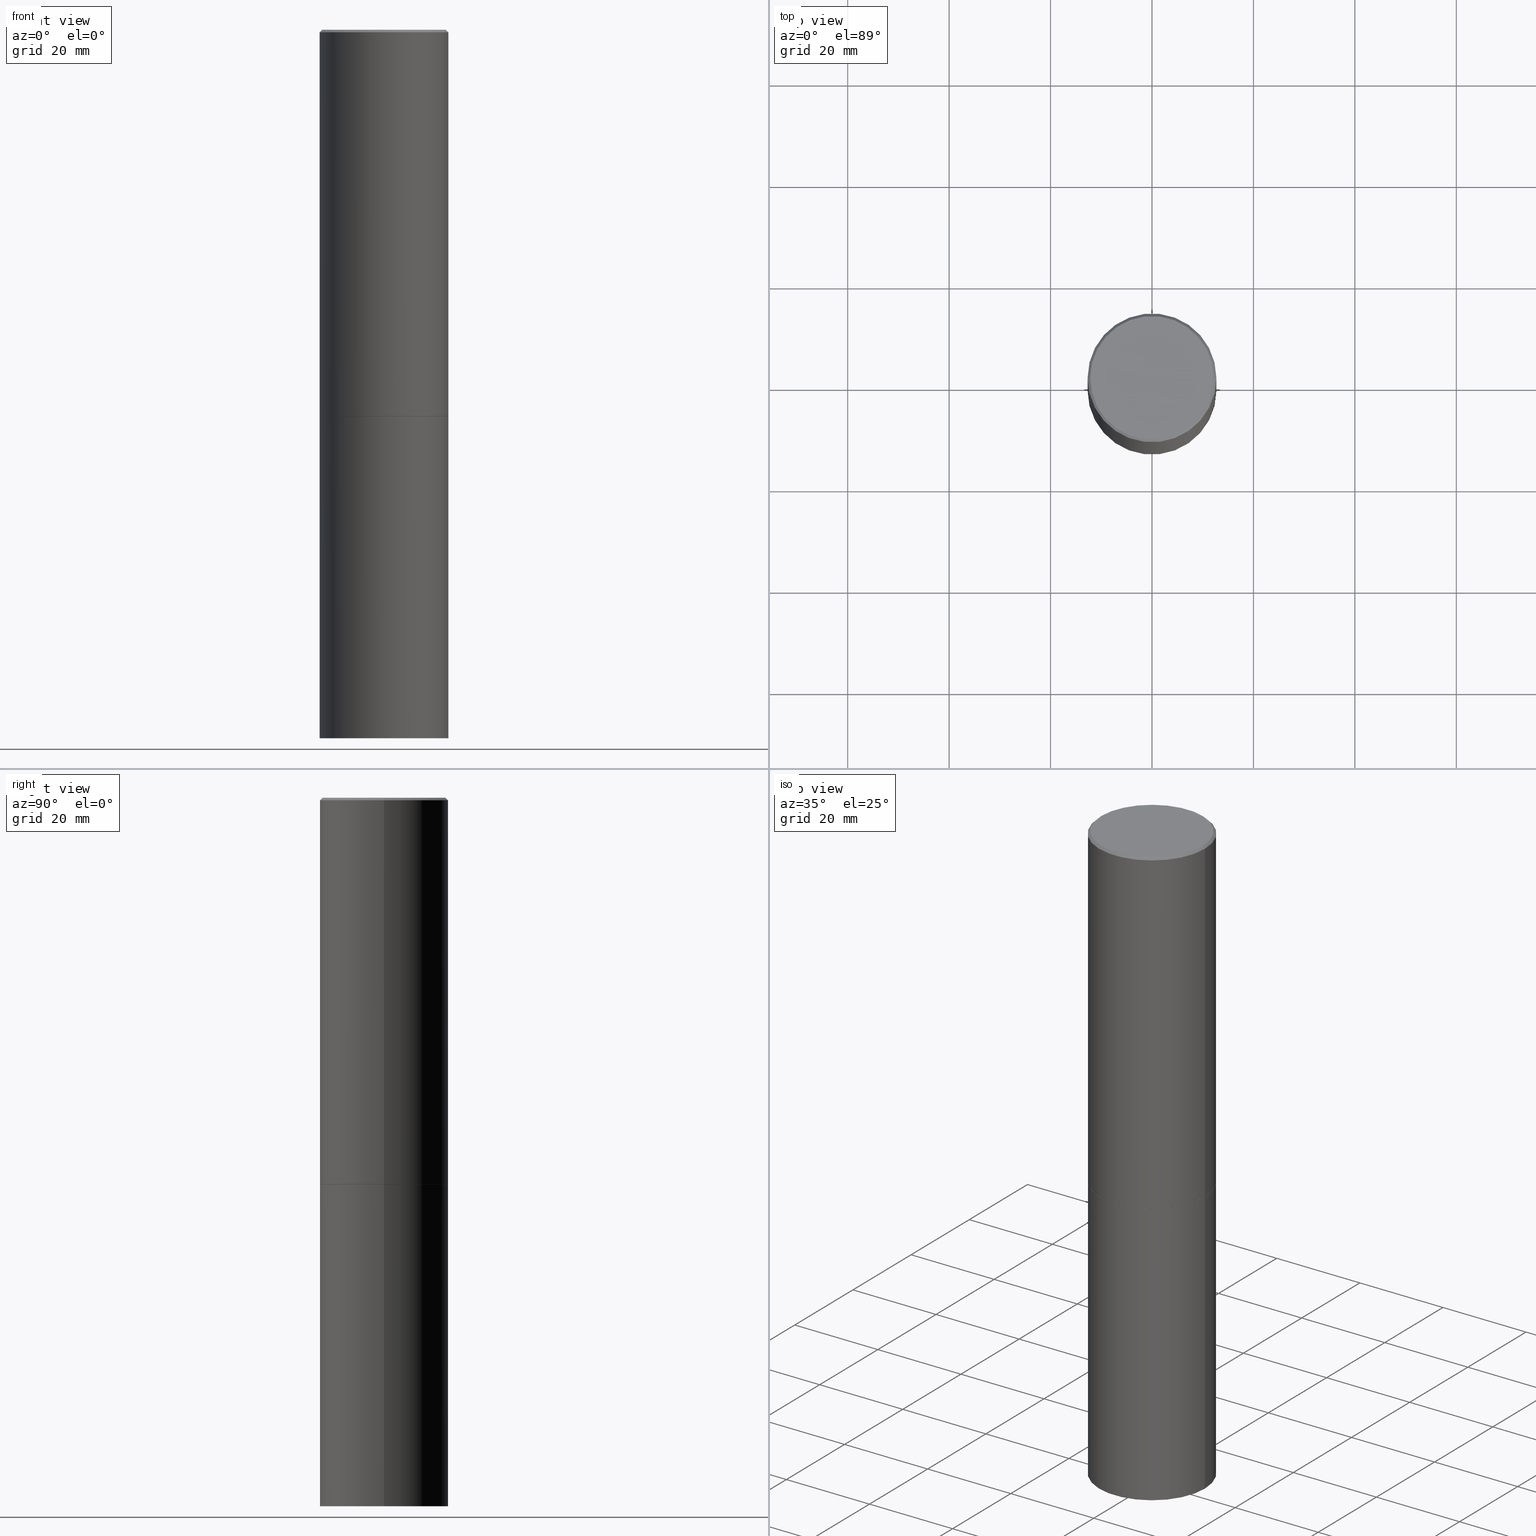
[diagram: canonical four-view strip — front | top / right | iso, engineering-drawing reading convention]
A machine part, canonical four-view strip (front | top / right | iso — engineering-drawing reading convention). The complete STEP part file that produces these views, byte-faithful:
ISO-10303-21;
HEADER;
FILE_DESCRIPTION (( 'STEP AP203' ),
    '1' );
FILE_NAME ('77462.STEP',
    '2024-05-03T15:07:13',
    ( '' ),
    ( '' ),
    'SwSTEP 2.0',
    'SolidWorks 2023',
    '' );
FILE_SCHEMA (( 'CONFIG_CONTROL_DESIGN' ));
ENDSEC;

DATA;
#1 = DIRECTION ( 'NONE',  ( 1.000000000000000000, -6.982962677686266711E-15, 0.000000000000000000 ) ) ;
#2 = DIRECTION ( 'NONE',  ( 0.000000000000000000, 0.000000000000000000, 1.000000000000000000 ) ) ;
#3 = LINE ( 'NONE', #17, #142 ) ;
#4 = ADVANCED_FACE ( 'NONE', ( #22 ), #277, .T. ) ;
#5 = CYLINDRICAL_SURFACE ( 'NONE', #235, 0.5000000000000000000 ) ;
#6 = VECTOR ( 'NONE', #311, 39.37007874015748143 ) ;
#7 = ORIENTED_EDGE ( 'NONE', *, *, #270, .F. ) ;
#8 = CC_DESIGN_PERSON_AND_ORGANIZATION_ASSIGNMENT ( #285, #350, ( #352 ) ) ;
#9 = APPROVAL ( #260, 'UNSPECIFIED' ) ;
#10 = VECTOR ( 'NONE', #57, 39.37007874015748143 ) ;
#11 = CONICAL_SURFACE ( 'NONE', #223, 0.4989999999999999991, 0.7853981633978239785 ) ;
#12 = VERTEX_POINT ( 'NONE', #364 ) ;
#13 = ORIENTED_EDGE ( 'NONE', *, *, #123, .F. ) ;
#14 = AXIS2_PLACEMENT_3D ( 'NONE', #141, #343, #67 ) ;
#15 = DIRECTION ( 'NONE',  ( -2.445468806185136597E-29, 3.491481338843145583E-15, 1.000000000000000000 ) ) ;
#16 = EDGE_LOOP ( 'NONE', ( #334, #316, #301, #71 ) ) ;
#17 = CARTESIAN_POINT ( 'NONE',  ( -0.4999999999999998335, 3.552713678800499746E-15, -2.459467545127452330E-29 ) ) ;
#18 = VERTEX_POINT ( 'NONE', #109 ) ;
#19 = PLANE ( 'NONE',  #81 ) ;
#20 = AXIS2_PLACEMENT_3D ( 'NONE', #47, #51, #165 ) ;
#21 = FACE_OUTER_BOUND ( 'NONE', #79, .T. ) ;
#22 = FACE_OUTER_BOUND ( 'NONE', #194, .T. ) ;
#23 = CC_DESIGN_DATE_AND_TIME_ASSIGNMENT ( #318, #41, ( #74 ) ) ;
#24 = FACE_OUTER_BOUND ( 'NONE', #353, .T. ) ;
#25 = VERTEX_POINT ( 'NONE', #78 ) ;
#26 =( NAMED_UNIT ( * ) PLANE_ANGLE_UNIT ( ) SI_UNIT ( $, .RADIAN. ) );
#27 = CARTESIAN_POINT ( 'NONE',  ( 7.336406418555408669E-29, -1.047444401652943478E-14, -2.999999999999999556 ) ) ;
#28 = EDGE_CURVE ( 'NONE', #213, #69, #215, .T. ) ;
#29 = FACE_OUTER_BOUND ( 'NONE', #156, .T. ) ;
#30 = PERSON_AND_ORGANIZATION ( #84, #271 ) ;
#31 = CC_DESIGN_APPROVAL ( #9, ( #74 ) ) ;
#32 = DATE_AND_TIME ( #315, #120 ) ;
#33 = DIRECTION ( 'NONE',  ( 1.000000000000000000, -6.982962677686269077E-15, 0.000000000000000000 ) ) ;
#34 = APPLICATION_PROTOCOL_DEFINITION ( 'international standard', 'config_control_design', 1994, #116 ) ;
#35 = ORIENTED_EDGE ( 'NONE', *, *, #225, .T. ) ;
#36 = PERSON_AND_ORGANIZATION_ROLE ( 'creator' ) ;
#37 = EDGE_CURVE ( 'NONE', #52, #25, #268, .T. ) ;
#38 = CIRCLE ( 'NONE', #234, 0.4989999999999999991 ) ;
#39 = AXIS2_PLACEMENT_3D ( 'NONE', #236, #273, #216 ) ;
#40 = COORDINATED_UNIVERSAL_TIME_OFFSET ( 5, 0, .BEHIND. ) ;
#41 = DATE_TIME_ROLE ( 'classification_date' ) ;
#42 = VERTEX_POINT ( 'NONE', #187 ) ;
#43 = CC_DESIGN_APPROVAL ( #351, ( #227 ) ) ;
#44 = DIRECTION ( 'NONE',  ( -2.438088387897960049E-29, 3.491481338843145188E-15, 1.000000000000000000 ) ) ;
#45 = EDGE_CURVE ( 'NONE', #272, #239, #206, .T. ) ;
#46 = EDGE_LOOP ( 'NONE', ( #338, #139, #298, #237 ) ) ;
#47 = CARTESIAN_POINT ( 'NONE',  ( 7.333960949749226429E-29, -1.047095253519059492E-14, -2.999000000000000554 ) ) ;
#48 = EDGE_CURVE ( 'NONE', #99, #264, #38, .T. ) ;
#49 = CLOSED_SHELL ( 'NONE', ( #252, #265, #4, #344, #276, #313, #100, #60 ) ) ;
#50 = CIRCLE ( 'NONE', #341, 0.5000000000000000000 ) ;
#51 = DIRECTION ( 'NONE',  ( -2.445468806185136597E-29, 3.491481338843145583E-15, 1.000000000000000000 ) ) ;
#52 = VERTEX_POINT ( 'NONE', #176 ) ;
#53 = CARTESIAN_POINT ( 'NONE',  ( 0.4999999999999998335, -3.491481338843132566E-15, 2.438088387897967336E-29 ) ) ;
#54 = DIRECTION ( 'NONE',  ( -2.445468806185136597E-29, 3.491481338843145583E-15, 1.000000000000000000 ) ) ;
#55 = AXIS2_PLACEMENT_3D ( 'NONE', #171, #15, #130 ) ;
#56 = CYLINDRICAL_SURFACE ( 'NONE', #55, 0.5000000000000000000 ) ;
#57 = DIRECTION ( 'NONE',  ( -2.445468806185136877E-29, 3.491481338843145188E-15, 1.000000000000000000 ) ) ;
#58 = ORIENTED_EDGE ( 'NONE', *, *, #225, .F. ) ;
#59 = DIRECTION ( 'NONE',  ( -2.445468806185136597E-29, 3.491481338843145583E-15, 1.000000000000000000 ) ) ;
#60 = ADVANCED_FACE ( 'NONE', ( #300 ), #305, .F. ) ;
#61 = LOCAL_TIME ( 11, 7, 13.00000000000000000, #149 ) ;
#62 =( NAMED_UNIT ( * ) SI_UNIT ( $, .STERADIAN. ) SOLID_ANGLE_UNIT ( ) );
#63 = CARTESIAN_POINT ( 'NONE',  ( 7.336406418555408669E-29, -1.047444401652943478E-14, -2.999999999999999556 ) ) ;
#64 = MANIFOLD_SOLID_BREP ( 'Body-Move/Copy2[2]', #49 ) ;
#65 = CARTESIAN_POINT ( 'NONE',  ( 0.000000000000000000, 0.000000000000000000, 0.000000000000000000 ) ) ;
#66 = ORIENTED_EDGE ( 'NONE', *, *, #37, .F. ) ;
#67 = DIRECTION ( 'NONE',  ( -1.000000000000000000, 6.982962677686266711E-15, 0.000000000000000000 ) ) ;
#68 = ORIENTED_EDGE ( 'NONE', *, *, #339, .T. ) ;
#69 = VERTEX_POINT ( 'NONE', #133 ) ;
#70 = ORIENTED_EDGE ( 'NONE', *, *, #354, .F. ) ;
#71 = ORIENTED_EDGE ( 'NONE', *, *, #119, .F. ) ;
#72 = ORIENTED_EDGE ( 'NONE', *, *, #290, .F. ) ;
#73 = AXIS2_PLACEMENT_3D ( 'NONE', #131, #258, #158 ) ;
#74 = SECURITY_CLASSIFICATION ( '', '', #94 ) ;
#75 = EDGE_CURVE ( 'NONE', #52, #12, #186, .T. ) ;
#76 = CARTESIAN_POINT ( 'NONE',  ( 0.4999999999999997224, -3.500078625662627502E-15, -0.02000000000000013572 ) ) ;
#77 = CARTESIAN_POINT ( 'NONE',  ( 0.000000000000000000, 0.000000000000000000, 0.000000000000000000 ) ) ;
#78 = CARTESIAN_POINT ( 'NONE',  ( 0.4799999999999995937, -3.396558832296480127E-15, 1.280553747032483033E-17 ) ) ;
#79 = EDGE_LOOP ( 'NONE', ( #295, #204, #72, #103 ) ) ;
#80 = AXIS2_PLACEMENT_3D ( 'NONE', #317, #2, #115 ) ;
#81 = AXIS2_PLACEMENT_3D ( 'NONE', #108, #195, #292 ) ;
#82 = CARTESIAN_POINT ( 'NONE',  ( 7.336406418555408669E-29, -1.047444401652943478E-14, -2.999999999999999556 ) ) ;
#83 = DIRECTION ( 'NONE',  ( 0.7071067811865471286, -7.319954787623254468E-15, -0.7071067811865479058 ) ) ;
#84 = PERSON ( 'UNSPECIFIED', 'UNSPECIFIED', 'UNSPECIFIED', ('UNSPECIFIED'), ('UNSPECIFIED'), ('UNSPECIFIED') ) ;
#85 = CARTESIAN_POINT ( 'NONE',  ( 4.890937612370306439E-31, -6.982962677686338448E-17, -0.02000000000000013572 ) ) ;
#86 = AXIS2_PLACEMENT_3D ( 'NONE', #253, #323, #128 ) ;
#87 = AXIS2_PLACEMENT_3D ( 'NONE', #192, #333, #166 ) ;
#88 = ORIENTED_EDGE ( 'NONE', *, *, #284, .T. ) ;
#89 = LOCAL_TIME ( 11, 7, 13.00000000000000000, #40 ) ;
#90 =( CONVERSION_BASED_UNIT ( 'INCH', #143 ) LENGTH_UNIT ( ) NAMED_UNIT ( #218 ) );
#91 = CC_DESIGN_DATE_AND_TIME_ASSIGNMENT ( #122, #340, ( #227 ) ) ;
#92 = DIRECTION ( 'NONE',  ( -2.445468806185136597E-29, 3.491481338843145583E-15, 1.000000000000000000 ) ) ;
#93 = ORIENTED_EDGE ( 'NONE', *, *, #339, .F. ) ;
#94 = SECURITY_CLASSIFICATION_LEVEL ( 'unclassified' ) ;
#95 = EDGE_LOOP ( 'NONE', ( #58, #66, #101, #291 ) ) ;
#96 = DATE_AND_TIME ( #151, #191 ) ;
#97 = LOCAL_TIME ( 11, 7, 13.00000000000000000, #288 ) ;
#98 = PERSON_AND_ORGANIZATION ( #84, #271 ) ;
#99 = VERTEX_POINT ( 'NONE', #150 ) ;
#100 = ADVANCED_FACE ( 'NONE', ( #29 ), #250, .F. ) ;
#101 = ORIENTED_EDGE ( 'NONE', *, *, #75, .T. ) ;
#102 = CALENDAR_DATE ( 2024, 3, 5 ) ;
#103 = ORIENTED_EDGE ( 'NONE', *, *, #28, .F. ) ;
#104 = CIRCLE ( 'NONE', #87, 0.4799999999999995937 ) ;
#105 = DIRECTION ( 'NONE',  ( -2.445468806185136597E-29, 3.491481338843145583E-15, 1.000000000000000000 ) ) ;
#106 = CARTESIAN_POINT ( 'NONE',  ( -0.5000000000000000000, -1.128608201128286632E-14, -5.500000000000000000 ) ) ;
#107 = DIRECTION ( 'NONE',  ( -2.445468806185136877E-29, 3.491481338843145188E-15, 1.000000000000000000 ) ) ;
#108 = CARTESIAN_POINT ( 'NONE',  ( 3.491481338843267462E-15, 0.4999999999999807931, -5.500000000000001776 ) ) ;
#109 = CARTESIAN_POINT ( 'NONE',  ( 0.4999999999999997224, -3.500078625662627502E-15, -0.02000000000000013572 ) ) ;
#110 = ORIENTED_EDGE ( 'NONE', *, *, #358, .F. ) ;
#111 = CYLINDRICAL_SURFACE ( 'NONE', #197, 0.4999999999999998335 ) ;
#112 = ORIENTED_EDGE ( 'NONE', *, *, #172, .F. ) ;
#113 = DIRECTION ( 'NONE',  ( 1.000000000000000000, -6.982962677686269077E-15, 0.000000000000000000 ) ) ;
#114 = AXIS2_PLACEMENT_3D ( 'NONE', #238, #54, #138 ) ;
#115 = DIRECTION ( 'NONE',  ( 1.000000000000000000, 0.000000000000000000, 0.000000000000000000 ) ) ;
#116 = APPLICATION_CONTEXT ( 'configuration controlled 3d designs of mechanical parts and assemblies' ) ;
#117 = DIRECTION ( 'NONE',  ( 1.000000000000000000, -6.982962677686266711E-15, 4.876176775795935793E-29 ) ) ;
#118 =( LENGTH_UNIT ( ) NAMED_UNIT ( * ) SI_UNIT ( $, .METRE. ) );
#119 = EDGE_CURVE ( 'NONE', #239, #69, #282, .T. ) ;
#120 = LOCAL_TIME ( 11, 7, 13.00000000000000000, #348 ) ;
#121 = DIRECTION ( 'NONE',  ( 0.7071067811868130271, -2.468850131085038979E-15, 0.7071067811862817853 ) ) ;
#122 = DATE_AND_TIME ( #254, #61 ) ;
#123 = EDGE_CURVE ( 'NONE', #25, #52, #104, .T. ) ;
#124 = ORIENTED_EDGE ( 'NONE', *, *, #296, .T. ) ;
#125 = CONICAL_SURFACE ( 'NONE', #304, 0.4989999999999999991, 0.7853981633978239785 ) ;
#126 = CALENDAR_DATE ( 2024, 3, 5 ) ;
#127 = ORIENTED_EDGE ( 'NONE', *, *, #290, .T. ) ;
#128 = DIRECTION ( 'NONE',  ( -1.000000000000000000, 6.982962677686265922E-15, -4.876176775795935793E-29 ) ) ;
#129 = AXIS2_PLACEMENT_3D ( 'NONE', #345, #180, #280 ) ;
#130 = DIRECTION ( 'NONE',  ( 1.000000000000000000, -6.982962677686266711E-15, 4.876176775795935793E-29 ) ) ;
#131 = CARTESIAN_POINT ( 'NONE',  ( -3.131554243005659264E-46, 4.471029511141341874E-32, 1.280553747030123384E-17 ) ) ;
#132 = DIRECTION ( 'NONE',  ( -2.445468806185136597E-29, 3.491481338843145583E-15, 1.000000000000000000 ) ) ;
#133 = CARTESIAN_POINT ( 'NONE',  ( 0.5000000000000000000, -1.396592535537256813E-14, -2.999999999999999556 ) ) ;
#134 = LINE ( 'NONE', #53, #175 ) ;
#135 = CARTESIAN_POINT ( 'NONE',  ( 4.890937612370306439E-31, -6.982962677686338448E-17, -0.02000000000000013572 ) ) ;
#136 = CLOSED_SHELL ( 'NONE', ( #337, #275, #202, #349 ) ) ;
#137 = AXIS2_PLACEMENT_3D ( 'NONE', #27, #342, #247 ) ;
#138 = DIRECTION ( 'NONE',  ( 1.000000000000000000, -6.982962677686262766E-15, 0.000000000000000000 ) ) ;
#139 = ORIENTED_EDGE ( 'NONE', *, *, #172, .T. ) ;
#140 = FACE_OUTER_BOUND ( 'NONE', #190, .T. ) ;
#141 = CARTESIAN_POINT ( 'NONE',  ( 4.890937612370306439E-31, -6.982962677686338448E-17, -0.02000000000000013572 ) ) ;
#142 = VECTOR ( 'NONE', #163, 39.37007874015748143 ) ;
#143 = LENGTH_MEASURE_WITH_UNIT ( LENGTH_MEASURE( 0.02539999999999999897 ), #118 );
#144 = DIRECTION ( 'NONE',  ( -2.445468806185136597E-29, 3.491481338843145583E-15, 1.000000000000000000 ) ) ;
#145 = APPROVAL_DATE_TIME ( #32, #351 ) ;
#146 = CARTESIAN_POINT ( 'NONE',  ( 7.333960949749226429E-29, -1.047095253519059492E-14, -2.999000000000000554 ) ) ;
#147 = DIRECTION ( 'NONE',  ( -0.7071067811865471286, 2.468850131082252722E-15, -0.7071067811865479058 ) ) ;
#148 = AXIS2_PLACEMENT_3D ( 'NONE', #85, #196, #269 ) ;
#149 = COORDINATED_UNIVERSAL_TIME_OFFSET ( 5, 0, .BEHIND. ) ;
#150 = CARTESIAN_POINT ( 'NONE',  ( -0.4989999999999999991, -6.923537310738314819E-15, -2.999999999999999556 ) ) ;
#151 = CALENDAR_DATE ( 2024, 3, 5 ) ;
#152 = ORIENTED_EDGE ( 'NONE', *, *, #48, .T. ) ;
#153 = APPROVAL_DATE_TIME ( #96, #9 ) ;
#154 = ORIENTED_EDGE ( 'NONE', *, *, #123, .T. ) ;
#155 = AXIS2_PLACEMENT_3D ( 'NONE', #208, #132, #1 ) ;
#156 = EDGE_LOOP ( 'NONE', ( #322, #181 ) ) ;
#157 = EDGE_CURVE ( 'NONE', #264, #99, #346, .T. ) ;
#158 = DIRECTION ( 'NONE',  ( 1.000000000000000000, -6.982962677686266711E-15, 4.876036955247133327E-29 ) ) ;
#159 = EDGE_LOOP ( 'NONE', ( #321, #306, #110, #93 ) ) ;
#160 = PERSON_AND_ORGANIZATION_ROLE ( 'classification_officer' ) ;
#161 = ORIENTED_EDGE ( 'NONE', *, *, #37, .T. ) ;
#162 = PRODUCT_DEFINITION_SHAPE ( 'NONE', 'NONE',  #227 ) ;
#163 = DIRECTION ( 'NONE',  ( -2.445468806185136877E-29, 3.491481338843145188E-15, 1.000000000000000000 ) ) ;
#164 = CIRCLE ( 'NONE', #129, 0.5000000000000000000 ) ;
#165 = DIRECTION ( 'NONE',  ( 1.000000000000000000, -6.982962677686266711E-15, 0.000000000000000000 ) ) ;
#166 = DIRECTION ( 'NONE',  ( 1.000000000000000000, -6.982962677686266711E-15, 4.876036955247133327E-29 ) ) ;
#167 = DIRECTION ( 'NONE',  ( -2.445468806185136597E-29, 3.491481338843145583E-15, 1.000000000000000000 ) ) ;
#168 = CARTESIAN_POINT ( 'NONE',  ( -0.5000000000000000000, -1.128608201128286632E-14, -2.999999999999999556 ) ) ;
#169 = APPROVAL_PERSON_ORGANIZATION ( #182, #9, #355 ) ;
#170 = CC_DESIGN_SECURITY_CLASSIFICATION ( #74, ( #352 ) ) ;
#171 = CARTESIAN_POINT ( 'NONE',  ( 0.000000000000000000, 0.000000000000000000, 0.000000000000000000 ) ) ;
#172 = EDGE_CURVE ( 'NONE', #42, #12, #3, .T. ) ;
#173 = APPROVAL_STATUS ( 'not_yet_approved' ) ;
#174 = PERSON_AND_ORGANIZATION ( #84, #271 ) ;
#175 = VECTOR ( 'NONE', #107, 39.37007874015748143 ) ;
#176 = CARTESIAN_POINT ( 'NONE',  ( -0.4799999999999995937, 3.386736898677836436E-15, 1.280553747027767124E-17 ) ) ;
#177 = CARTESIAN_POINT ( 'NONE',  ( 7.336406418555408669E-29, -1.047444401652943478E-14, -2.999999999999999556 ) ) ;
#178 = CC_DESIGN_PERSON_AND_ORGANIZATION_ASSIGNMENT ( #320, #160, ( #74 ) ) ;
#179 = MANIFOLD_SOLID_BREP ( 'Body-Move/Copy2[1]', #136 ) ;
#180 = DIRECTION ( 'NONE',  ( -2.445468806185136597E-29, 3.491481338843145583E-15, 1.000000000000000000 ) ) ;
#181 = ORIENTED_EDGE ( 'NONE', *, *, #48, .F. ) ;
#182 = PERSON_AND_ORGANIZATION ( #84, #271 ) ;
#183 = CARTESIAN_POINT ( 'NONE',  ( 7.336406418555408669E-29, -1.047444401652943478E-14, -2.999999999999999556 ) ) ;
#184 = AXIS2_PLACEMENT_3D ( 'NONE', #177, #44, #233 ) ;
#185 = VECTOR ( 'NONE', #83, 39.37007874015748143 ) ;
#186 = LINE ( 'NONE', #278, #210 ) ;
#187 = CARTESIAN_POINT ( 'NONE',  ( -0.5000000000000000000, -1.717677402183226998E-15, -2.999000000000000554 ) ) ;
#188 = LINE ( 'NONE', #76, #185 ) ;
#189 = DIRECTION ( 'NONE',  ( -2.445468806185136597E-29, 3.491481338843145583E-15, 1.000000000000000000 ) ) ;
#190 = EDGE_LOOP ( 'NONE', ( #112, #124, #88, #360 ) ) ;
#191 = LOCAL_TIME ( 11, 7, 13.00000000000000000, #232 ) ;
#192 = CARTESIAN_POINT ( 'NONE',  ( -3.131554243005659264E-46, 4.471029511141341874E-32, 1.280553747030123384E-17 ) ) ;
#193 = LINE ( 'NONE', #263, #357 ) ;
#194 = EDGE_LOOP ( 'NONE', ( #13, #35, #244, #201 ) ) ;
#195 = DIRECTION ( 'NONE',  ( 2.438088387897960049E-29, -3.491481338843145188E-15, -1.000000000000000000 ) ) ;
#196 = DIRECTION ( 'NONE',  ( -2.445468806185136597E-29, 3.491481338843145583E-15, 1.000000000000000000 ) ) ;
#197 = AXIS2_PLACEMENT_3D ( 'NONE', #77, #189, #294 ) ;
#198 = APPROVAL_ROLE ( '' ) ;
#199 = APPLICATION_PROTOCOL_DEFINITION ( 'international standard', 'config_control_design', 1994, #229 ) ;
#200 = FACE_OUTER_BOUND ( 'NONE', #16, .T. ) ;
#201 = ORIENTED_EDGE ( 'NONE', *, *, #75, .F. ) ;
#202 = ADVANCED_FACE ( 'NONE', ( #363 ), #327, .F. ) ;
#203 = CIRCLE ( 'NONE', #148, 0.4999999999999997224 ) ;
#204 = ORIENTED_EDGE ( 'NONE', *, *, #45, .T. ) ;
#205 = APPROVAL_DATE_TIME ( #230, #287 ) ;
#206 = LINE ( 'NONE', #259, #6 ) ;
#207 = CIRCLE ( 'NONE', #155, 0.4999999999999997224 ) ;
#208 = CARTESIAN_POINT ( 'NONE',  ( 4.890937612370306439E-31, -6.982962677686338448E-17, -0.02000000000000013572 ) ) ;
#209 = DIRECTION ( 'NONE',  ( 1.000000000000000000, -6.982962677686266711E-15, 0.000000000000000000 ) ) ;
#210 = VECTOR ( 'NONE', #147, 39.37007874015748143 ) ;
#211 = CYLINDRICAL_SURFACE ( 'NONE', #330, 0.4999999999999998335 ) ;
#212 = APPROVAL_PERSON_ORGANIZATION ( #174, #351, #198 ) ;
#213 = VERTEX_POINT ( 'NONE', #266 ) ;
#214 = FACE_OUTER_BOUND ( 'NONE', #336, .T. ) ;
#215 = LINE ( 'NONE', #303, #10 ) ;
#216 = DIRECTION ( 'NONE',  ( -1.000000000000000000, 6.982962677686265922E-15, -4.876176775795935793E-29 ) ) ;
#217 = DIRECTION ( 'NONE',  ( -2.445468806185136597E-29, 3.491481338843145583E-15, 1.000000000000000000 ) ) ;
#218 = DIMENSIONAL_EXPONENTS ( 1.000000000000000000, 0.000000000000000000, 0.000000000000000000, 0.000000000000000000, 0.000000000000000000, 0.000000000000000000, 0.000000000000000000 ) ;
#219 = DESIGN_CONTEXT ( 'detailed design', #116, 'design' ) ;
#220 = FACE_OUTER_BOUND ( 'NONE', #95, .T. ) ;
#221 = DIRECTION ( 'NONE',  ( 1.000000000000000000, -6.982962677686266711E-15, 0.000000000000000000 ) ) ;
#222 = CARTESIAN_POINT ( 'NONE',  ( 0.4989999999999999991, -1.395894239269488369E-14, -2.999999999999999556 ) ) ;
#223 = AXIS2_PLACEMENT_3D ( 'NONE', #246, #299, #113 ) ;
#224 = MECHANICAL_CONTEXT ( 'NONE', #229, 'mechanical' ) ;
#225 = EDGE_CURVE ( 'NONE', #25, #18, #188, .T. ) ;
#226 = ORIENTED_EDGE ( 'NONE', *, *, #119, .T. ) ;
#227 = PRODUCT_DEFINITION ( 'UNKNOWN', '', #352, #219 ) ;
#228 = PERSON_AND_ORGANIZATION_ROLE ( 'creator' ) ;
#229 = APPLICATION_CONTEXT ( 'configuration controlled 3d designs of mechanical parts and assemblies' ) ;
#230 = DATE_AND_TIME ( #126, #89 ) ;
#231 = ORIENTED_EDGE ( 'NONE', *, *, #256, .F. ) ;
#232 = COORDINATED_UNIVERSAL_TIME_OFFSET ( 5, 0, .BEHIND. ) ;
#233 = DIRECTION ( 'NONE',  ( 1.000000000000000000, -6.982962677686265922E-15, 4.876176775795935793E-29 ) ) ;
#234 = AXIS2_PLACEMENT_3D ( 'NONE', #63, #144, #33 ) ;
#235 = AXIS2_PLACEMENT_3D ( 'NONE', #65, #59, #117 ) ;
#236 = CARTESIAN_POINT ( 'NONE',  ( 3.491481338843206325E-15, 0.4999999999999895639, -3.000000000000001332 ) ) ;
#237 = ORIENTED_EDGE ( 'NONE', *, *, #284, .F. ) ;
#238 = CARTESIAN_POINT ( 'NONE',  ( 1.345007843401824904E-28, -1.920314736363729972E-14, -5.500000000000000000 ) ) ;
#239 = VERTEX_POINT ( 'NONE', #168 ) ;
#240 = EDGE_CURVE ( 'NONE', #18, #12, #207, .T. ) ;
#241 = DIRECTION ( 'NONE',  ( 1.000000000000000000, -6.982962677686269077E-15, 0.000000000000000000 ) ) ;
#242 = DIRECTION ( 'NONE',  ( 2.445468806185136597E-29, -3.491481338843145583E-15, -1.000000000000000000 ) ) ;
#243 = APPROVAL_PERSON_ORGANIZATION ( #308, #287, #310 ) ;
#244 = ORIENTED_EDGE ( 'NONE', *, *, #240, .T. ) ;
#245 = FACE_OUTER_BOUND ( 'NONE', #46, .T. ) ;
#246 = CARTESIAN_POINT ( 'NONE',  ( 7.336406418555408669E-29, -1.047444401652943478E-14, -2.999999999999999556 ) ) ;
#247 = DIRECTION ( 'NONE',  ( 1.000000000000000000, -6.982962677686269077E-15, 0.000000000000000000 ) ) ;
#248 = CIRCLE ( 'NONE', #20, 0.5000000000000000000 ) ;
#249 = CC_DESIGN_PERSON_AND_ORGANIZATION_ASSIGNMENT ( #30, #279, ( #356 ) ) ;
#250 = PLANE ( 'NONE',  #184 ) ;
#251 = LINE ( 'NONE', #222, #319 ) ;
#252 = ADVANCED_FACE ( 'NONE', ( #359 ), #125, .T. ) ;
#253 = CARTESIAN_POINT ( 'NONE',  ( 3.351822085289404787E-15, 0.4799999999999995937, -1.669508273909557867E-15 ) ) ;
#254 = CALENDAR_DATE ( 2024, 3, 5 ) ;
#255 = SHAPE_DEFINITION_REPRESENTATION ( #162, #325 ) ;
#256 = EDGE_CURVE ( 'NONE', #272, #213, #261, .T. ) ;
#257 =( GEOMETRIC_REPRESENTATION_CONTEXT ( 3 ) GLOBAL_UNCERTAINTY_ASSIGNED_CONTEXT ( ( #314 ) ) GLOBAL_UNIT_ASSIGNED_CONTEXT ( ( #90, #26, #62 ) ) REPRESENTATION_CONTEXT ( 'NONE', 'WORKASPACE' ) );
#258 = DIRECTION ( 'NONE',  ( -2.445468806185136597E-29, 3.491481338843145583E-15, 1.000000000000000000 ) ) ;
#259 = CARTESIAN_POINT ( 'NONE',  ( -0.5000000000000000000, 3.552713678800500929E-15, -2.459467545127452891E-29 ) ) ;
#260 = APPROVAL_STATUS ( 'not_yet_approved' ) ;
#261 = CIRCLE ( 'NONE', #114, 0.5000000000000000000 ) ;
#262 = DIRECTION ( 'NONE',  ( 1.000000000000000000, -6.982962677686267499E-15, 4.876176775795936353E-29 ) ) ;
#263 = CARTESIAN_POINT ( 'NONE',  ( -0.4989999999999999991, -6.928835765086534855E-15, -2.999999999999999556 ) ) ;
#264 = VERTEX_POINT ( 'NONE', #297 ) ;
#265 = ADVANCED_FACE ( 'NONE', ( #245 ), #211, .T. ) ;
#266 = CARTESIAN_POINT ( 'NONE',  ( 0.5000000000000000000, -2.269462870248043307E-14, -5.500000000000000000 ) ) ;
#267 = EDGE_LOOP ( 'NONE', ( #127, #226 ) ) ;
#268 = CIRCLE ( 'NONE', #73, 0.4799999999999995937 ) ;
#269 = DIRECTION ( 'NONE',  ( 1.000000000000000000, -6.982962677686266711E-15, 0.000000000000000000 ) ) ;
#270 = EDGE_CURVE ( 'NONE', #99, #42, #193, .T. ) ;
#271 = ORGANIZATION ( 'UNSPECIFIED', 'UNSPECIFIED', '' ) ;
#272 = VERTEX_POINT ( 'NONE', #106 ) ;
#273 = DIRECTION ( 'NONE',  ( 2.438088387897960049E-29, -3.491481338843145188E-15, -1.000000000000000000 ) ) ;
#274 = APPROVAL_STATUS ( 'not_yet_approved' ) ;
#275 = ADVANCED_FACE ( 'NONE', ( #24 ), #19, .T. ) ;
#276 = ADVANCED_FACE ( 'NONE', ( #140 ), #111, .T. ) ;
#277 = CONICAL_SURFACE ( 'NONE', #329, 0.4999999999999997224, 0.7853981633974477239 ) ;
#278 = CARTESIAN_POINT ( 'NONE',  ( -0.4999999999999997224, 3.421651712066268085E-15, -0.02000000000000013572 ) ) ;
#279 = PERSON_AND_ORGANIZATION_ROLE ( 'design_owner' ) ;
#280 = DIRECTION ( 'NONE',  ( 1.000000000000000000, -6.982962677686262766E-15, 0.000000000000000000 ) ) ;
#281 = PERSON_AND_ORGANIZATION ( #84, #271 ) ;
#282 = CIRCLE ( 'NONE', #293, 0.5000000000000000000 ) ;
#283 = CIRCLE ( 'NONE', #362, 0.5000000000000000000 ) ;
#284 = EDGE_CURVE ( 'NONE', #289, #18, #134, .T. ) ;
#285 = PERSON_AND_ORGANIZATION ( #84, #271 ) ;
#286 = EDGE_LOOP ( 'NONE', ( #161, #154 ) ) ;
#287 = APPROVAL ( #274, 'UNSPECIFIED' ) ;
#288 = COORDINATED_UNIVERSAL_TIME_OFFSET ( 5, 0, .BEHIND. ) ;
#289 = VERTEX_POINT ( 'NONE', #366 ) ;
#290 = EDGE_CURVE ( 'NONE', #69, #239, #283, .T. ) ;
#291 = ORIENTED_EDGE ( 'NONE', *, *, #326, .T. ) ;
#292 = DIRECTION ( 'NONE',  ( -1.000000000000000000, 6.982962677686265922E-15, -4.876176775795935793E-29 ) ) ;
#293 = AXIS2_PLACEMENT_3D ( 'NONE', #183, #105, #209 ) ;
#294 = DIRECTION ( 'NONE',  ( 1.000000000000000000, -6.982962677686267499E-15, 4.876176775795936353E-29 ) ) ;
#295 = ORIENTED_EDGE ( 'NONE', *, *, #354, .T. ) ;
#296 = EDGE_CURVE ( 'NONE', #42, #289, #248, .T. ) ;
#297 = CARTESIAN_POINT ( 'NONE',  ( 0.4989999999999999991, -1.395894239269488369E-14, -2.999999999999999556 ) ) ;
#298 = ORIENTED_EDGE ( 'NONE', *, *, #240, .F. ) ;
#299 = DIRECTION ( 'NONE',  ( -2.445468806185136597E-29, 3.491481338843145583E-15, 1.000000000000000000 ) ) ;
#300 = FACE_OUTER_BOUND ( 'NONE', #286, .T. ) ;
#301 = ORIENTED_EDGE ( 'NONE', *, *, #28, .T. ) ;
#302 = CARTESIAN_POINT ( 'NONE',  ( 7.336406418555408669E-29, -1.047444401652943478E-14, -2.999999999999999556 ) ) ;
#303 = CARTESIAN_POINT ( 'NONE',  ( 0.5000000000000000000, -3.491481338843133355E-15, 2.438088387897967896E-29 ) ) ;
#304 = AXIS2_PLACEMENT_3D ( 'NONE', #82, #331, #241 ) ;
#305 = PLANE ( 'NONE',  #86 ) ;
#306 = ORIENTED_EDGE ( 'NONE', *, *, #270, .T. ) ;
#307 = PRODUCT_RELATED_PRODUCT_CATEGORY ( 'detail', '', ( #356 ) ) ;
#308 = PERSON_AND_ORGANIZATION ( #84, #271 ) ;
#309 = CC_DESIGN_PERSON_AND_ORGANIZATION_ASSIGNMENT ( #98, #228, ( #352 ) ) ;
#310 = APPROVAL_ROLE ( '' ) ;
#311 = DIRECTION ( 'NONE',  ( -2.445468806185136877E-29, 3.491481338843145188E-15, 1.000000000000000000 ) ) ;
#312 = CONICAL_SURFACE ( 'NONE', #14, 0.4999999999999997224, 0.7853981633974477239 ) ;
#313 = ADVANCED_FACE ( 'NONE', ( #214 ), #11, .T. ) ;
#314 = UNCERTAINTY_MEASURE_WITH_UNIT (LENGTH_MEASURE( 1.000000000000000082E-05 ), #90, 'distance_accuracy_value', 'NONE');
#315 = CALENDAR_DATE ( 2024, 3, 5 ) ;
#316 = ORIENTED_EDGE ( 'NONE', *, *, #256, .T. ) ;
#317 = CARTESIAN_POINT ( 'NONE',  ( 0.000000000000000000, 0.000000000000000000, 0.000000000000000000 ) ) ;
#318 = DATE_AND_TIME ( #102, #97 ) ;
#319 = VECTOR ( 'NONE', #121, 39.37007874015748854 ) ;
#320 = PERSON_AND_ORGANIZATION ( #84, #271 ) ;
#321 = ORIENTED_EDGE ( 'NONE', *, *, #157, .T. ) ;
#322 = ORIENTED_EDGE ( 'NONE', *, *, #157, .F. ) ;
#323 = DIRECTION ( 'NONE',  ( 2.438088387897960049E-29, -3.491481338843145188E-15, -1.000000000000000000 ) ) ;
#324 = CC_DESIGN_APPROVAL ( #287, ( #352 ) ) ;
#325 = ADVANCED_BREP_SHAPE_REPRESENTATION ( '77462', ( #179, #64, #80 ), #257 ) ;
#326 = EDGE_CURVE ( 'NONE', #12, #18, #203, .T. ) ;
#327 = PLANE ( 'NONE',  #39 ) ;
#328 = DIRECTION ( 'NONE',  ( -1.000000000000000000, 6.982962677686266711E-15, 0.000000000000000000 ) ) ;
#329 = AXIS2_PLACEMENT_3D ( 'NONE', #135, #242, #328 ) ;
#330 = AXIS2_PLACEMENT_3D ( 'NONE', #361, #217, #262 ) ;
#331 = DIRECTION ( 'NONE',  ( -2.445468806185136597E-29, 3.491481338843145583E-15, 1.000000000000000000 ) ) ;
#332 = DIRECTION ( 'NONE',  ( -0.7071067811868130271, 7.493145998871311837E-15, 0.7071067811862817853 ) ) ;
#333 = DIRECTION ( 'NONE',  ( -2.445468806185136597E-29, 3.491481338843145583E-15, 1.000000000000000000 ) ) ;
#334 = ORIENTED_EDGE ( 'NONE', *, *, #45, .F. ) ;
#335 = DIRECTION ( 'NONE',  ( 1.000000000000000000, -6.982962677686266711E-15, 0.000000000000000000 ) ) ;
#336 = EDGE_LOOP ( 'NONE', ( #7, #152, #68, #365 ) ) ;
#337 = ADVANCED_FACE ( 'NONE', ( #21 ), #56, .T. ) ;
#338 = ORIENTED_EDGE ( 'NONE', *, *, #358, .T. ) ;
#339 = EDGE_CURVE ( 'NONE', #264, #289, #251, .T. ) ;
#340 = DATE_TIME_ROLE ( 'creation_date' ) ;
#341 = AXIS2_PLACEMENT_3D ( 'NONE', #146, #92, #221 ) ;
#342 = DIRECTION ( 'NONE',  ( -2.445468806185136597E-29, 3.491481338843145583E-15, 1.000000000000000000 ) ) ;
#343 = DIRECTION ( 'NONE',  ( 2.445468806185136597E-29, -3.491481338843145583E-15, -1.000000000000000000 ) ) ;
#344 = ADVANCED_FACE ( 'NONE', ( #220 ), #312, .T. ) ;
#345 = CARTESIAN_POINT ( 'NONE',  ( 1.345007843401824904E-28, -1.920314736363729972E-14, -5.500000000000000000 ) ) ;
#346 = CIRCLE ( 'NONE', #137, 0.4989999999999999991 ) ;
#347 = CC_DESIGN_PERSON_AND_ORGANIZATION_ASSIGNMENT ( #281, #36, ( #227 ) ) ;
#348 = COORDINATED_UNIVERSAL_TIME_OFFSET ( 5, 0, .BEHIND. ) ;
#349 = ADVANCED_FACE ( 'NONE', ( #200 ), #5, .T. ) ;
#350 = PERSON_AND_ORGANIZATION_ROLE ( 'design_supplier' ) ;
#351 = APPROVAL ( #173, 'UNSPECIFIED' ) ;
#352 = PRODUCT_DEFINITION_FORMATION_WITH_SPECIFIED_SOURCE ( 'ANY', '', #356, .NOT_KNOWN. ) ;
#353 = EDGE_LOOP ( 'NONE', ( #70, #231 ) ) ;
#354 = EDGE_CURVE ( 'NONE', #213, #272, #164, .T. ) ;
#355 = APPROVAL_ROLE ( '' ) ;
#356 = PRODUCT ( '77462', '77462', '', ( #224 ) ) ;
#357 = VECTOR ( 'NONE', #332, 39.37007874015748854 ) ;
#358 = EDGE_CURVE ( 'NONE', #289, #42, #50, .T. ) ;
#359 = FACE_OUTER_BOUND ( 'NONE', #159, .T. ) ;
#360 = ORIENTED_EDGE ( 'NONE', *, *, #326, .F. ) ;
#361 = CARTESIAN_POINT ( 'NONE',  ( 0.000000000000000000, 0.000000000000000000, 0.000000000000000000 ) ) ;
#362 = AXIS2_PLACEMENT_3D ( 'NONE', #302, #167, #335 ) ;
#363 = FACE_OUTER_BOUND ( 'NONE', #267, .T. ) ;
#364 = CARTESIAN_POINT ( 'NONE',  ( -0.4999999999999997224, 3.421651712066268085E-15, -0.02000000000000013572 ) ) ;
#365 = ORIENTED_EDGE ( 'NONE', *, *, #296, .F. ) ;
#366 = CARTESIAN_POINT ( 'NONE',  ( 0.5000000000000000000, -1.396243387403372828E-14, -2.999000000000000554 ) ) ;
ENDSEC;
END-ISO-10303-21;
